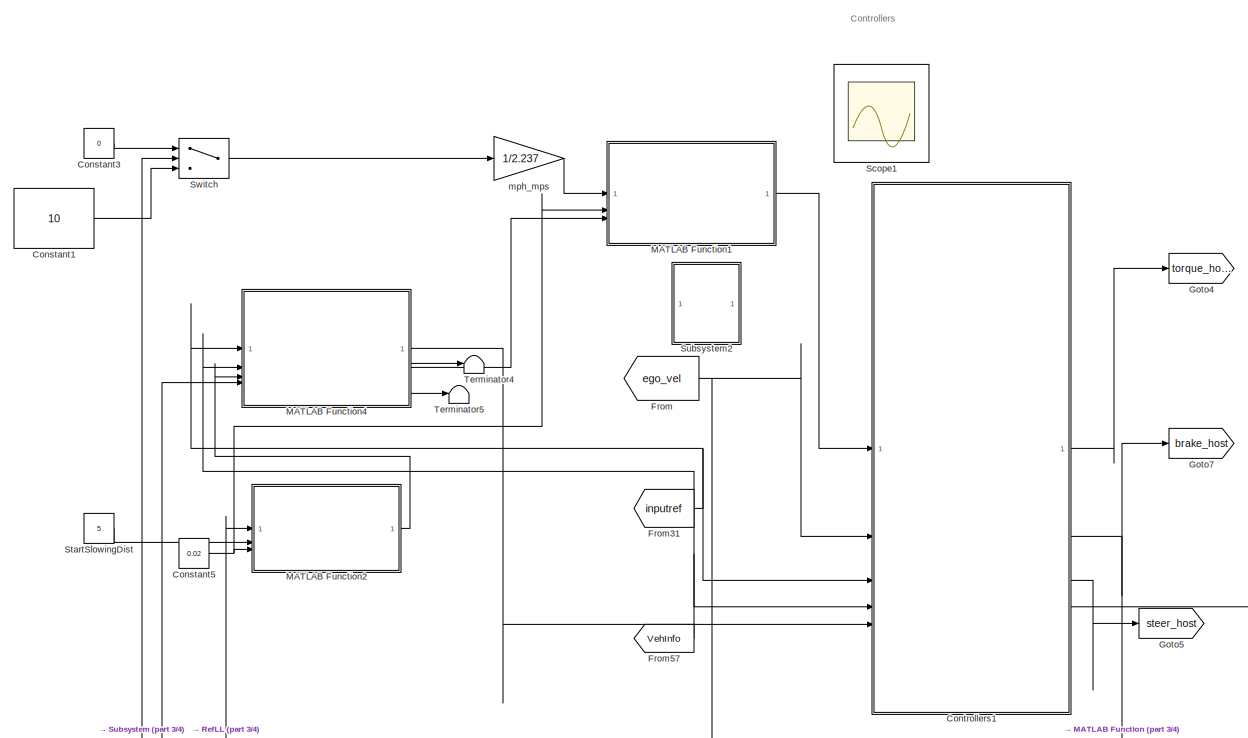
[diagram: root canvas - part 1/4, top left region]
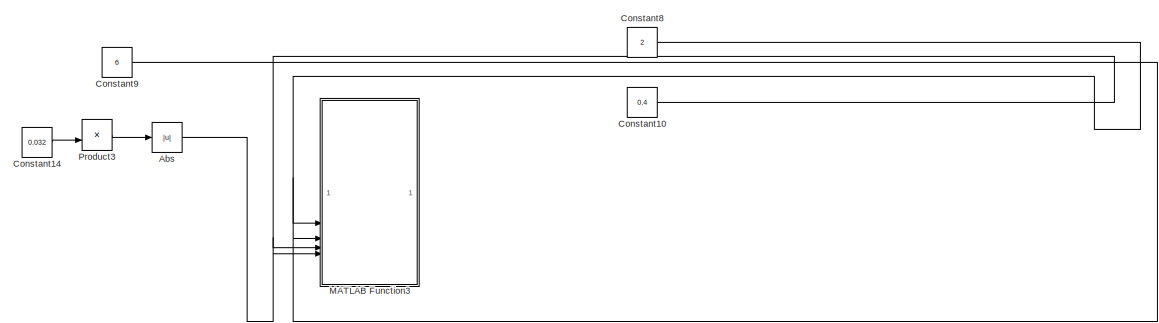
[diagram: root canvas - part 2/4, top right region]
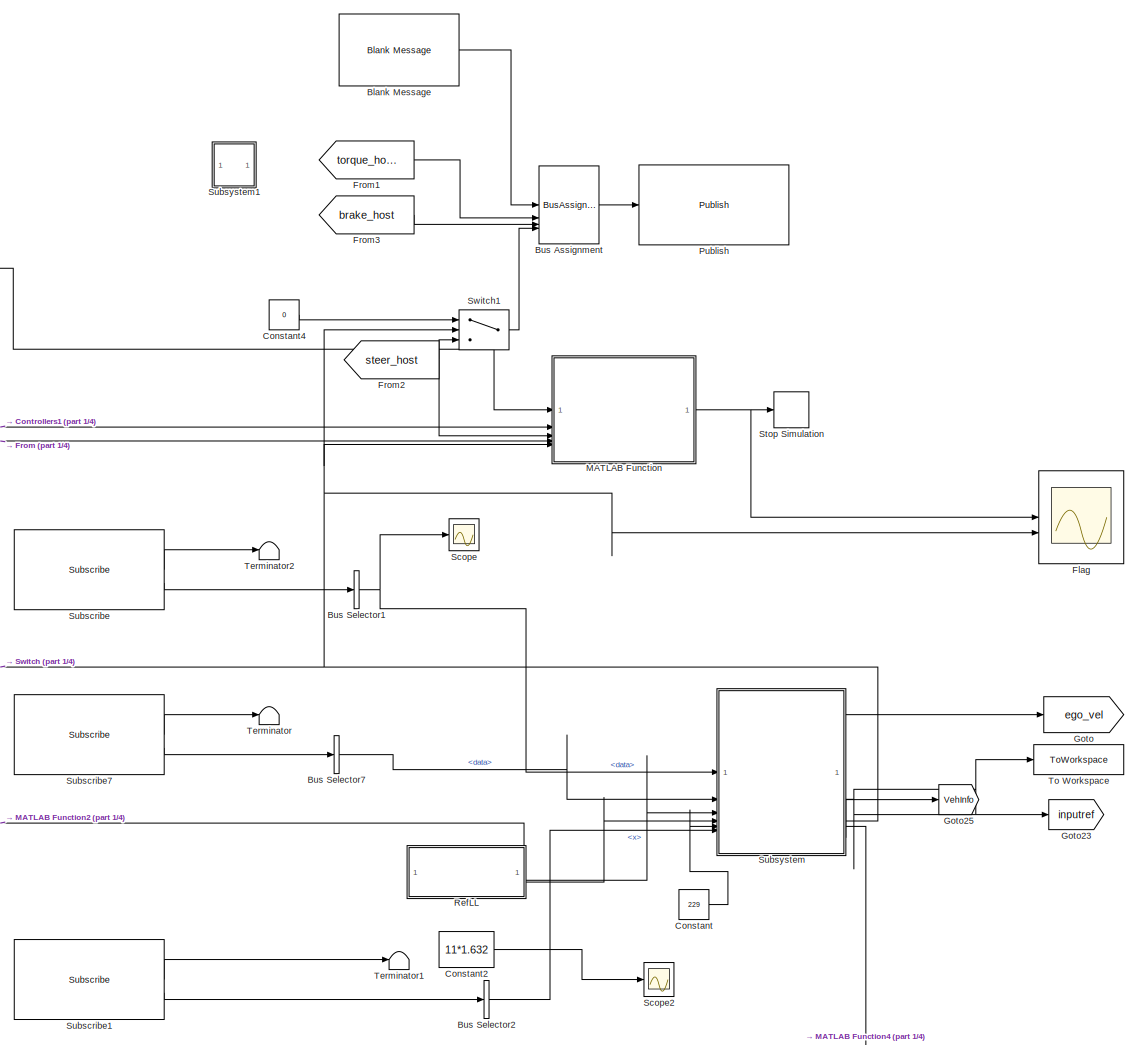
[diagram: root canvas - part 3/4, right side, full height]
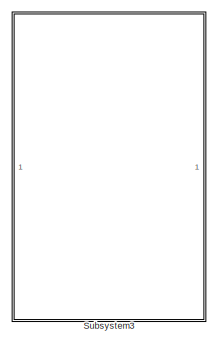
[diagram: root canvas - part 4/4, bottom right region]
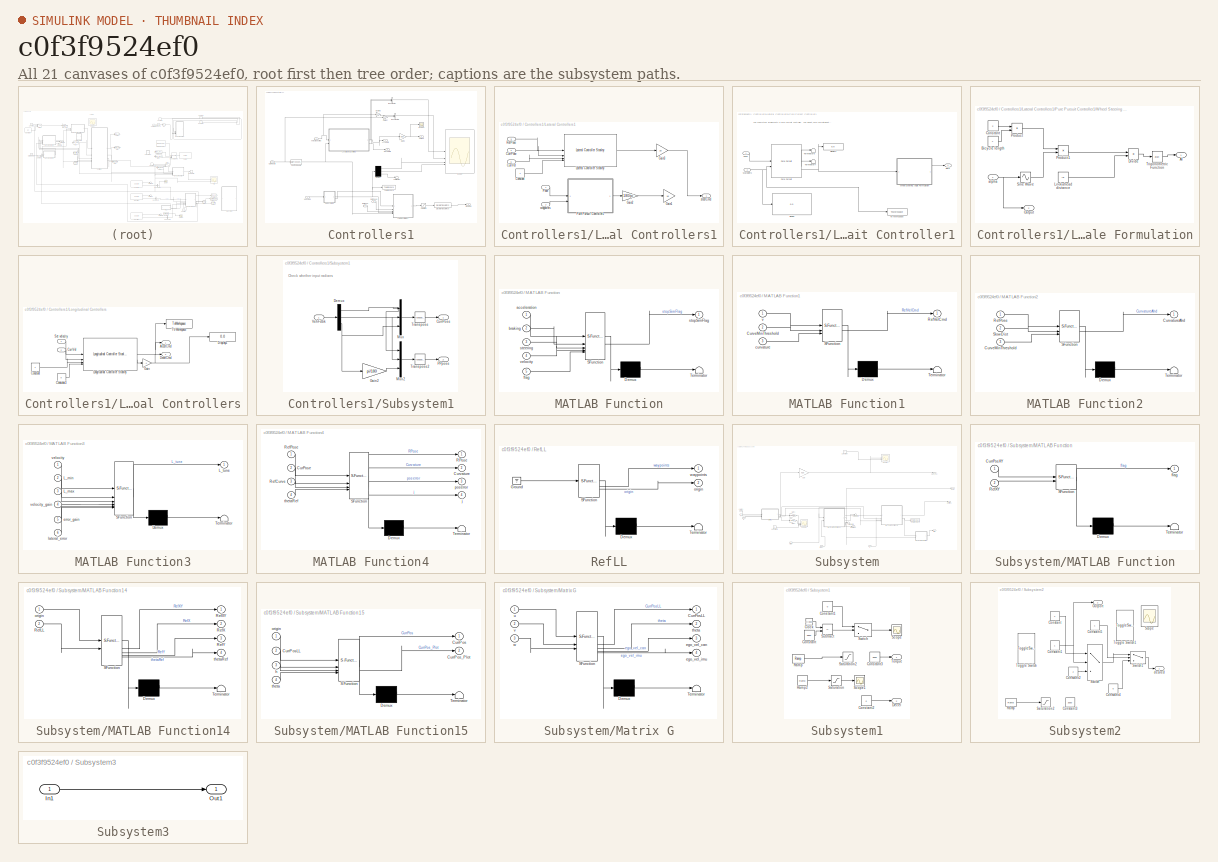
[diagram: thumbnail index - all 21 canvases of the model, root first then tree order]
MODEL slx_c0f3f9524ef0
KIND model
CONFIG AbsTol = auto
CONFIG EnableMultiTasking = off
CONFIG FixedStep = 0.01
CONFIG MaxStep = auto
CONFIG MinStep = auto
CONFIG RelTol = 1e-3
CONFIG SampleTimeConstraint = Unconstrained
CONFIG SolverName = FixedStepAuto
CONFIG StartTime = 0.0
CONFIG StopTime = inf
BLOCK [Abs] Abs
  Commented = on
  SaturateOnIntegerOverflow = off
BLOCK [Reference] Blank Message  REF=ros2lib/Blank Message  (lib defined in slx_3c1549211f48)
  LibrarySourceBlock = roslib/ROS 2/Blank Message
  SourceBlock = ros2lib/Blank Message
  SourceType = ROS2 Blank Message
BLOCK [BusAssignment] Bus Assignment
  AssignedSignals = x,y,z
BLOCK [BusSelector] Bus Selector1
  OutputSignals = data
BLOCK [BusSelector] Bus Selector2
  OutputSignals = x,y
BLOCK [BusSelector] Bus Selector7
  OutputSignals = data
BLOCK [Constant] Constant
  Value = 229
BLOCK [Constant] Constant1
  Value = 10
BLOCK [Constant] Constant10
  Commented = on
  Value = 0.4
BLOCK [Constant] Constant14
  Commented = on
  Value = 0.032
BLOCK [Constant] Constant2
  Commented = on
  Value = 11*1.632
BLOCK [Constant] Constant3
  Value = 0
BLOCK [Constant] Constant4
  Value = 0
BLOCK [Constant] Constant5
  Value = 0.02
BLOCK [Constant] Constant8
  Commented = on
  Value = 2
BLOCK [Constant] Constant9
  Commented = on
  Value = 6
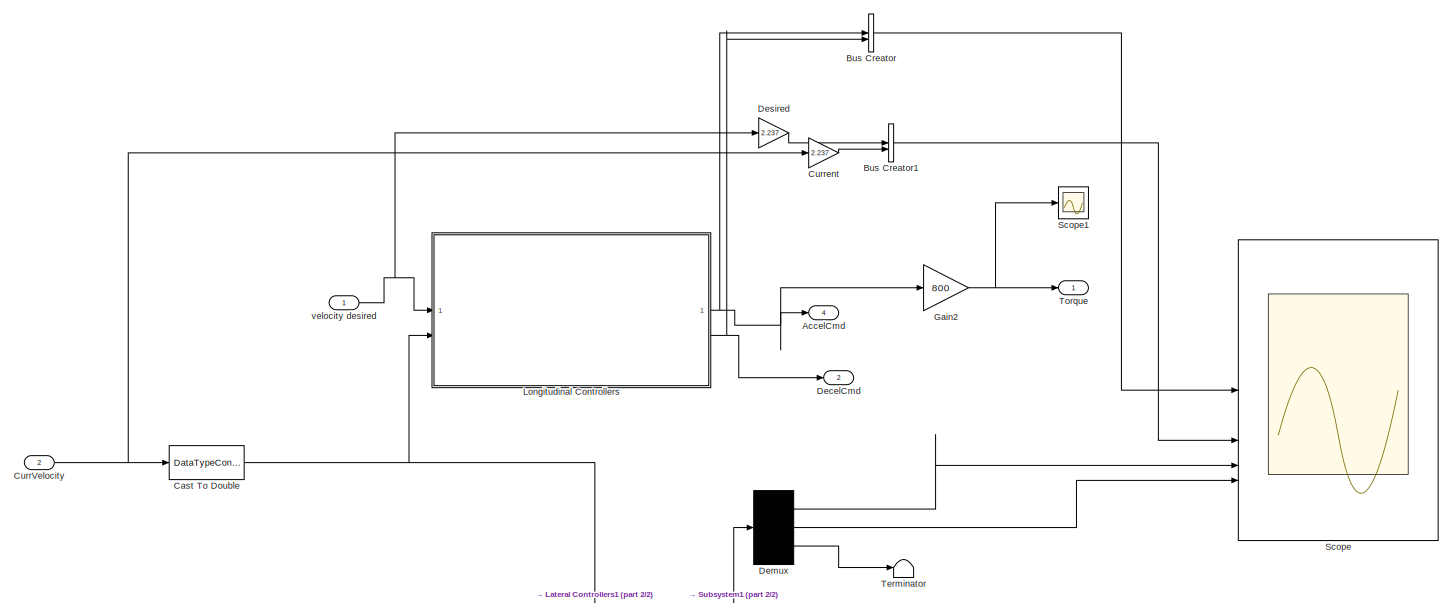
[diagram: Controllers1 - part 1/2, full width, middle band]
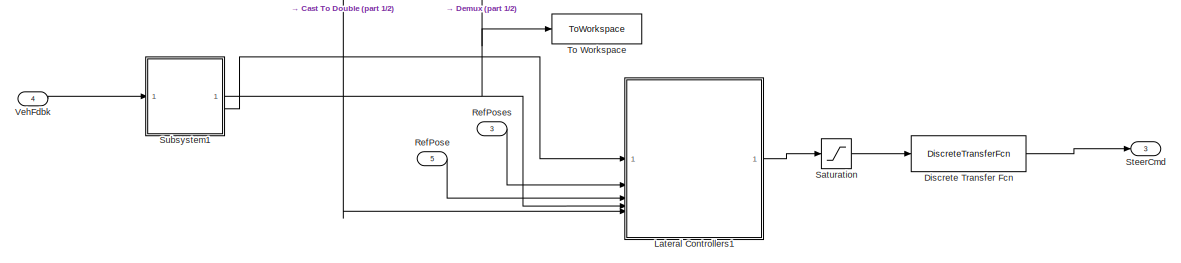
[diagram: Controllers1 - part 2/2, full width, bottom band]
BLOCK [SubSystem] Controllers1
BLOCK [Outport] Controllers1/AccelCmd
  Port = 4
BLOCK [BusCreator] Controllers1/Bus Creator
  DisplayOption = bar
  InheritFromInputs = on
  Inputs = 2
BLOCK [BusCreator] Controllers1/Bus Creator1
  DisplayOption = bar
  InheritFromInputs = on
  Inputs = 2
BLOCK [DataTypeConversion] Controllers1/Cast To Double
  OutDataTypeStr = double
  RndMeth = Floor
  SaturateOnIntegerOverflow = off
BLOCK [Inport] Controllers1/CurrVelocity
  Port = 2
BLOCK [Gain] Controllers1/Current
  Gain = 2.237
BLOCK [Outport] Controllers1/DecelCmd
  Port = 2
BLOCK [Demux] Controllers1/Demux
  Outputs = 3
BLOCK [Gain] Controllers1/Desired
  Gain = 2.237
BLOCK [DiscreteTransferFcn] Controllers1/Discrete Transfer Fcn
  Denominator = [1 -1.8952 0.90129]
  InputPortMap = u0
  Numerator = [0.0015186 0.0030372 0.0015186]
  SampleTime = 0.01
BLOCK [Gain] Controllers1/Gain2
  Gain = 800
BLOCK [SubSystem] Controllers1/Lateral Controllers1
BLOCK [Constant] Controllers1/Lateral Controllers1/Constant
BLOCK [Inport] Controllers1/Lateral Controllers1/CurrPose
  Port = 4
BLOCK [Inport] Controllers1/Lateral Controllers1/CurrVel
  Port = 5
BLOCK [Gain] Controllers1/Lateral Controllers1/Gain1
  Commented = on
  Gain = 16
BLOCK [Gain] Controllers1/Lateral Controllers1/Gain2
  Commented = on
  Gain = 180/pi
BLOCK [Gain] Controllers1/Lateral Controllers1/Gain3
  Gain = 16
BLOCK [Reference] Controllers1/Lateral Controllers1/Lateral Controller Stanley  REF=drivingvehiclecontroller/Lateral Controller Stanley
  SourceBlock = drivingvehiclecontroller/Lateral Controller Stanley
  SourceType = Lateral Controller Stanley
BLOCK [Inport] Controllers1/Lateral Controllers1/Pose
BLOCK [SubSystem] Controllers1/Lateral Controllers1/Pure Pursuit Controller1
  Commented = on
BLOCK [Display] Controllers1/Lateral Controllers1/Pure Pursuit Controller1/Display
  Decimation = 1
BLOCK [Display] Controllers1/Lateral Controllers1/Pure Pursuit Controller1/Display1
  Decimation = 1
BLOCK [Inport] Controllers1/Lateral Controllers1/Pure Pursuit Controller1/Pose
BLOCK [Reference] Controllers1/Lateral Controllers1/Pure Pursuit Controller1/Pure Pursuit  REF=robotalgslib/Pure Pursuit
  SourceBlock = robotalgslib/Pure Pursuit
  SourceType = nav.slalgs.internal.PurePursuit
BLOCK [Terminator] Controllers1/Lateral Controllers1/Pure Pursuit Controller1/Terminator6
BLOCK [Terminator] Controllers1/Lateral Controllers1/Pure Pursuit Controller1/Terminator7
BLOCK [ToWorkspace] Controllers1/Lateral Controllers1/Pure Pursuit Controller1/To Workspace
  FixptAsFi = on
  MaxDataPoints = inf
  SampleTime = -1
  SaveFormat = Timeseries
  VariableName = simout
BLOCK [Inport] Controllers1/Lateral Controllers1/Pure Pursuit Controller1/Waypoints
  Port = 2
BLOCK [SubSystem] Controllers1/Lateral Controllers1/Pure Pursuit Controller1/Wheel Steering Angle Formulation
BLOCK [Outport] Controllers1/Lateral Controllers1/Pure Pursuit Controller1/Wheel Steering Angle Formulation/Al
BLOCK [Constant] Controllers1/Lateral Controllers1/Pure Pursuit Controller1/Wheel Steering Angle Formulation/Bicycle length
  Value = L
BLOCK [Constant] Controllers1/Lateral Controllers1/Pure Pursuit Controller1/Wheel Steering Angle Formulation/Constant
  Value = 2
BLOCK [Product] Controllers1/Lateral Controllers1/Pure Pursuit Controller1/Wheel Steering Angle Formulation/Divide
  Inputs = */
BLOCK [Constant] Controllers1/Lateral Controllers1/Pure Pursuit Controller1/Wheel Steering Angle Formulation/Lookahead distance
  Value = ld
BLOCK [Outport] Controllers1/Lateral Controllers1/Pure Pursuit Controller1/Wheel Steering Angle Formulation/Output
  Port = 2
BLOCK [Product] Controllers1/Lateral Controllers1/Pure Pursuit Controller1/Wheel Steering Angle Formulation/Product
BLOCK [Product] Controllers1/Lateral Controllers1/Pure Pursuit Controller1/Wheel Steering Angle Formulation/Product1
BLOCK [Sin] Controllers1/Lateral Controllers1/Pure Pursuit Controller1/Wheel Steering Angle Formulation/Sine Wave
  SampleTime = 0
  TimeSource = Use external signal
BLOCK [Trigonometry] Controllers1/Lateral Controllers1/Pure Pursuit Controller1/Wheel Steering Angle Formulation/Trigonometric Function
  Operator = atan
BLOCK [Inport] Controllers1/Lateral Controllers1/Pure Pursuit Controller1/Wheel Steering Angle Formulation/alpha
  NameLocation = top
BLOCK [Outport] Controllers1/Lateral Controllers1/Pure Pursuit Controller1/delta
BLOCK [Inport] Controllers1/Lateral Controllers1/RefPose
  Port = 3
BLOCK [Outport] Controllers1/Lateral Controllers1/steerCmd
BLOCK [Inport] Controllers1/Lateral Controllers1/waypoints
  Port = 2
BLOCK [SubSystem] Controllers1/Longitudinal Controllers
BLOCK [Outport] Controllers1/Longitudinal Controllers/AccelCmd
BLOCK [Constant] Controllers1/Longitudinal Controllers/Constant
BLOCK [Constant] Controllers1/Longitudinal Controllers/Constant3
  Value = 0
BLOCK [Inport] Controllers1/Longitudinal Controllers/CurrVel
  Port = 2
BLOCK [Outport] Controllers1/Longitudinal Controllers/DecelCmd
  Port = 2
BLOCK [Display] Controllers1/Longitudinal Controllers/Display1
  Decimation = 1
BLOCK [Gain] Controllers1/Longitudinal Controllers/Gain
  Gain = -1
BLOCK [Reference] Controllers1/Longitudinal Controllers/Longitudinal Controller Stanley  REF=drivingvehiclecontroller/Longitudinal Controller Stanley
  SourceBlock = drivingvehiclecontroller/Longitudinal Controller Stanley
  SourceType = Longitudinal Controller Stanley
BLOCK [Inport] Controllers1/Longitudinal Controllers/Set velocity
BLOCK [ToWorkspace] Controllers1/Longitudinal Controllers/To Workspace
  FixptAsFi = on
  MaxDataPoints = inf
  SampleTime = -1
  SaveFormat = Timeseries
  VariableName = simout4
BLOCK [Inport] Controllers1/RefPose
  Port = 5
BLOCK [Inport] Controllers1/RefPoses
  Port = 3
BLOCK [Saturate] Controllers1/Saturation
  LinearizeAsGain = off
  LowerLimit = -540
  UpperLimit = 540
BLOCK [Scope] Controllers1/Scope
  Floating = off
  NumInputPorts = 4
  ScopeSpecificationString = Simulink.scopes.TimeScopeBlockCfg('CurrentConfiguration', extmgr.ConfigurationSet(extmgr.Configuration('Core','General UI',true),extmgr.Configuration('Core','Source UI',true),extmgr.Configuration('Sources','WiredSimulink',true,'DataLoggingVariableName','ScopeData3'),extmgr.Configuration('Visuals','Time Domain',true,'SerializedDisplays',{struct('MinYLimReal','-2.77151','MaxYLimReal','3.41906','YLab...<+3876ch>
BLOCK [Scope] Controllers1/Scope1
  Floating = off
  NumInputPorts = 1
  ScopeSpecificationString = Simulink.scopes.TimeScopeBlockCfg('CurrentConfiguration', extmgr.ConfigurationSet(extmgr.Configuration('Core','General UI',true),extmgr.Configuration('Core','Source UI',true),extmgr.Configuration('Sources','WiredSimulink',true,'DataLoggingVariableName','ScopeData4'),extmgr.Configuration('Visuals','Time Domain',true,'SerializedDisplays',{struct('MinYLimReal','1800.00000','MaxYLimReal','3800.00000',...<+1437ch>
BLOCK [Outport] Controllers1/SteerCmd
  Port = 3
BLOCK [SubSystem] Controllers1/Subsystem1
  NameLocation = top
BLOCK [Outport] Controllers1/Subsystem1/CurrPose
BLOCK [Demux] Controllers1/Subsystem1/Demux
  Outputs = 3
BLOCK [Gain] Controllers1/Subsystem1/Gain2
  Gain = pi/180
BLOCK [Mux] Controllers1/Subsystem1/Mux
  DisplayOption = bar
  Inputs = 3
BLOCK [Mux] Controllers1/Subsystem1/Mux2
  DisplayOption = bar
  Inputs = 3
BLOCK [Outport] Controllers1/Subsystem1/PPpose
  Port = 2
BLOCK [Math] Controllers1/Subsystem1/Transpose
  Operator = transpose
  SignedPower = on
BLOCK [Math] Controllers1/Subsystem1/Transpose2
  Operator = transpose
  SignedPower = on
BLOCK [Inport] Controllers1/Subsystem1/VehFdbk
BLOCK [Terminator] Controllers1/Terminator
BLOCK [ToWorkspace] Controllers1/To Workspace
  FixptAsFi = on
  MaxDataPoints = inf
  SampleTime = -1
  SaveFormat = Structure With Time
  VariableName = current
BLOCK [Outport] Controllers1/Torque
BLOCK [Inport] Controllers1/VehFdbk
  Port = 4
BLOCK [Inport] Controllers1/velocity desired
BLOCK [Scope] Flag 
  Floating = off
  NumInputPorts = 2
  ScopeSpecificationString = Simulink.scopes.TimeScopeBlockCfg('CurrentConfiguration', extmgr.ConfigurationSet(extmgr.Configuration('Core','General UI',true),extmgr.Configuration('Core','Source UI',true),extmgr.Configuration('Sources','WiredSimulink',true,'DataLoggingVariableName','ScopeData1'),extmgr.Configuration('Visuals','Time Domain',true,'SerializedDisplays',{struct('MinYLimReal','-11.36311','MaxYLimReal','102.268','YLa...<+2969ch>
BLOCK [From] From
  GotoTag = ego_vel
  TagVisibility = global
BLOCK [From] From1
  GotoTag = torque_host
  TagVisibility = global
BLOCK [From] From2
  GotoTag = steer_host
  TagVisibility = global
BLOCK [From] From3
  GotoTag = brake_host
  TagVisibility = global
BLOCK [From] From31
  GotoTag = inputref
  TagVisibility = global
BLOCK [From] From57
  GotoTag = VehInfo
  TagVisibility = global
BLOCK [Goto] Goto
  GotoTag = ego_vel
  TagVisibility = global
BLOCK [Goto] Goto23
  GotoTag = inputref
  TagVisibility = global
BLOCK [Goto] Goto25
  GotoTag = VehInfo
  TagVisibility = global
BLOCK [Goto] Goto4
  GotoTag = torque_host
  TagVisibility = global
BLOCK [Goto] Goto5
  GotoTag = steer_host
  TagVisibility = global
BLOCK [Goto] Goto7
  GotoTag = brake_host
  TagVisibility = global
BLOCK [SubSystem] MATLAB Function
  ErrorFcn = Stateflow.Translate.translate
  LibrarySourceBlock = simulink/User-Defined\nFunctions/MATLAB Function
  PermitHierarchicalResolution = ExplicitOnly
  SFBlockType = MATLAB Function
  TreatAsAtomicUnit = on
BLOCK [Demux] MATLAB Function/ Demux 
  Outputs = 1
BLOCK [S-Function] MATLAB Function/ SFunction 
  EnableBusSupport = on
  FunctionName = sf_sfun
  PortCounts = [5 2]
  SFcnIsStateOwnerBlock = off
  SFunctionDeploymentMode = off
  Tag = Stateflow S-Function 4
BLOCK [Terminator] MATLAB Function/ Terminator 
BLOCK [Inport] MATLAB Function/acceleration
BLOCK [Inport] MATLAB Function/braking
  Port = 2
BLOCK [Inport] MATLAB Function/flag
  Port = 5
BLOCK [Inport] MATLAB Function/steering
  Port = 3
BLOCK [Outport] MATLAB Function/stopSimFlag
BLOCK [Inport] MATLAB Function/velocity
  Port = 4
BLOCK [SubSystem] MATLAB Function1
  ErrorFcn = Stateflow.Translate.translate
  LibrarySourceBlock = simulink/User-Defined\nFunctions/MATLAB Function
  PermitHierarchicalResolution = ExplicitOnly
  SFBlockType = MATLAB Function
  TreatAsAtomicUnit = on
BLOCK [Demux] MATLAB Function1/ Demux 
  Outputs = 1
BLOCK [S-Function] MATLAB Function1/ SFunction 
  EnableBusSupport = on
  FunctionName = sf_sfun
  PortCounts = [3 2]
  SFcnIsStateOwnerBlock = off
  SFunctionDeploymentMode = off
  Tag = Stateflow S-Function 5
BLOCK [Terminator] MATLAB Function1/ Terminator 
BLOCK [Inport] MATLAB Function1/CurveMinThreshold
  Port = 2
BLOCK [Outport] MATLAB Function1/RefVelCmd
BLOCK [Inport] MATLAB Function1/curvature
  Port = 3
BLOCK [Inport] MATLAB Function1/v
BLOCK [SubSystem] MATLAB Function2
  ErrorFcn = Stateflow.Translate.translate
  LibrarySourceBlock = simulink/User-Defined\nFunctions/MATLAB Function
  PermitHierarchicalResolution = ExplicitOnly
  SFBlockType = MATLAB Function
  TreatAsAtomicUnit = on
BLOCK [Demux] MATLAB Function2/ Demux 
  Outputs = 1
BLOCK [S-Function] MATLAB Function2/ SFunction 
  EnableBusSupport = on
  FunctionName = sf_sfun
  PortCounts = [3 2]
  SFcnIsStateOwnerBlock = off
  SFunctionDeploymentMode = off
  Tag = Stateflow S-Function 6
BLOCK [Terminator] MATLAB Function2/ Terminator 
BLOCK [Outport] MATLAB Function2/CurvatureAhd
BLOCK [Inport] MATLAB Function2/CurveMinThreshold
  Port = 3
BLOCK [Inport] MATLAB Function2/RefPose
BLOCK [Inport] MATLAB Function2/SlowDist
  Port = 2
BLOCK [SubSystem] MATLAB Function3
  Commented = on
  ErrorFcn = Stateflow.Translate.translate
  PermitHierarchicalResolution = ExplicitOnly
  SFBlockType = MATLAB Function
  TreatAsAtomicUnit = on
BLOCK [Demux] MATLAB Function3/ Demux 
  Outputs = 1
BLOCK [S-Function] MATLAB Function3/ SFunction 
  EnableBusSupport = on
  FunctionName = sf_sfun
  PortCounts = [6 2]
  SFcnIsStateOwnerBlock = off
  SFunctionDeploymentMode = off
  Tag = Stateflow S-Function 27
BLOCK [Terminator] MATLAB Function3/ Terminator 
BLOCK [Inport] MATLAB Function3/L_max
  Port = 3
BLOCK [Inport] MATLAB Function3/L_min
  Port = 2
BLOCK [Outport] MATLAB Function3/L_tune
BLOCK [Inport] MATLAB Function3/error_gain
  Port = 5
BLOCK [Inport] MATLAB Function3/lateral_error
  Port = 6
BLOCK [Inport] MATLAB Function3/velocity
BLOCK [Inport] MATLAB Function3/velocity_gain
  Port = 4
BLOCK [SubSystem] MATLAB Function4
  ErrorFcn = Stateflow.Translate.translate
  LibrarySourceBlock = simulink/User-Defined\nFunctions/MATLAB Function
  PermitHierarchicalResolution = ExplicitOnly
  SFBlockType = MATLAB Function
  TreatAsAtomicUnit = on
BLOCK [Demux] MATLAB Function4/ Demux 
  Outputs = 1
BLOCK [S-Function] MATLAB Function4/ SFunction 
  EnableBusSupport = on
  FunctionName = sf_sfun
  PortCounts = [4 5]
  SFcnIsStateOwnerBlock = off
  SFunctionDeploymentMode = off
  Tag = Stateflow S-Function 7
BLOCK [Terminator] MATLAB Function4/ Terminator 
BLOCK [Inport] MATLAB Function4/CurPose
  Port = 2
BLOCK [Outport] MATLAB Function4/Curvature
  Port = 2
BLOCK [Outport] MATLAB Function4/RPose
BLOCK [Inport] MATLAB Function4/RefCurve
  Port = 3
BLOCK [Inport] MATLAB Function4/RefPose
BLOCK [Outport] MATLAB Function4/j
  Port = 4
BLOCK [Outport] MATLAB Function4/poserror
  Port = 3
BLOCK [Inport] MATLAB Function4/thetaRef
  Port = 4
BLOCK [Product] Product3
  Commented = on
BLOCK [Reference] Publish  REF=ros2lib/Publish  (lib defined in slx_3c1549211f48)
  LibrarySourceBlock = roslib/ROS 2/Publish
  SourceBlock = ros2lib/Publish
  SourceType = ROS2 Publish
BLOCK [SubSystem] RefLL
  ErrorFcn = Stateflow.Translate.translate
  LibrarySourceBlock = simulink/User-Defined\nFunctions/MATLAB Function
  PermitHierarchicalResolution = ExplicitOnly
  SFBlockType = MATLAB Function
  TreatAsAtomicUnit = on
BLOCK [Demux] RefLL/ Demux 
  Outputs = 1
BLOCK [Ground] RefLL/ Ground 
BLOCK [S-Function] RefLL/ SFunction 
  EnableBusSupport = on
  FunctionName = sf_sfun
  PortCounts = [1 3]
  SFcnIsStateOwnerBlock = off
  SFunctionDeploymentMode = off
  Tag = Stateflow S-Function 1
BLOCK [Terminator] RefLL/ Terminator 
BLOCK [Outport] RefLL/origin
  Port = 2
BLOCK [Outport] RefLL/waypoints
BLOCK [Scope] Scope
  Commented = on
  Floating = off
  NumInputPorts = 1
  ScopeSpecificationString = Simulink.scopes.TimeScopeBlockCfg('CurrentConfiguration', extmgr.ConfigurationSet(extmgr.Configuration('Core','General UI',true),extmgr.Configuration('Core','Source UI',true),extmgr.Configuration('Sources','WiredSimulink',true,'DataLoggingVariableName','ScopeData1'),extmgr.Configuration('Visuals','Time Domain',true,'SerializedDisplays',{struct('MinYLimReal','-11.36311','MaxYLimReal','102.268','YLa...<+2969ch>
BLOCK [Scope] Scope1
  Commented = on
  Floating = off
  NumInputPorts = 3
  ScopeSpecificationString = Simulink.scopes.TimeScopeBlockCfg('CurrentConfiguration', extmgr.ConfigurationSet(extmgr.Configuration('Core','General UI',true),extmgr.Configuration('Core','Source UI',true),extmgr.Configuration('Sources','WiredSimulink',true,'DataLoggingVariableName','ScopeData1'),extmgr.Configuration('Visuals','Time Domain',true,'SerializedDisplays',{struct('MinYLimReal','-0.675','MaxYLimReal','6.075','YLabelRe...<+1438ch>
BLOCK [Scope] Scope2
  Commented = on
  Floating = off
  NumInputPorts = 3
  ScopeSpecificationString = Simulink.scopes.TimeScopeBlockCfg('CurrentConfiguration', extmgr.ConfigurationSet(extmgr.Configuration('Core','General UI',true),extmgr.Configuration('Core','Source UI',true),extmgr.Configuration('Sources','WiredSimulink',true,'DataLoggingVariableName','ScopeData2'),extmgr.Configuration('Visuals','Time Domain',true,'SerializedDisplays',{struct('MinYLimReal','8.48211','MaxYLimReal','23.34322','YLab...<+1454ch>
BLOCK [Constant] StartSlowingDist
  Value = 5
BLOCK [Stop] Stop Simulation
BLOCK [Reference] Subscribe  REF=ros2lib/Subscribe  (lib defined in slx_3c1549211f48)
  LibrarySourceBlock = roslib/ROS 2/Subscribe
  SourceBlock = ros2lib/Subscribe
  SourceType = ROS2 Subscribe
BLOCK [Reference] Subscribe1  REF=ros2lib/Subscribe  (lib defined in slx_3c1549211f48)
  LibrarySourceBlock = roslib/ROS 2/Subscribe
  SourceBlock = ros2lib/Subscribe
  SourceType = ROS2 Subscribe
BLOCK [Reference] Subscribe7  REF=ros2lib/Subscribe  (lib defined in slx_3c1549211f48)
  LibrarySourceBlock = roslib/ROS 2/Subscribe
  SourceBlock = ros2lib/Subscribe
  SourceType = ROS2 Subscribe
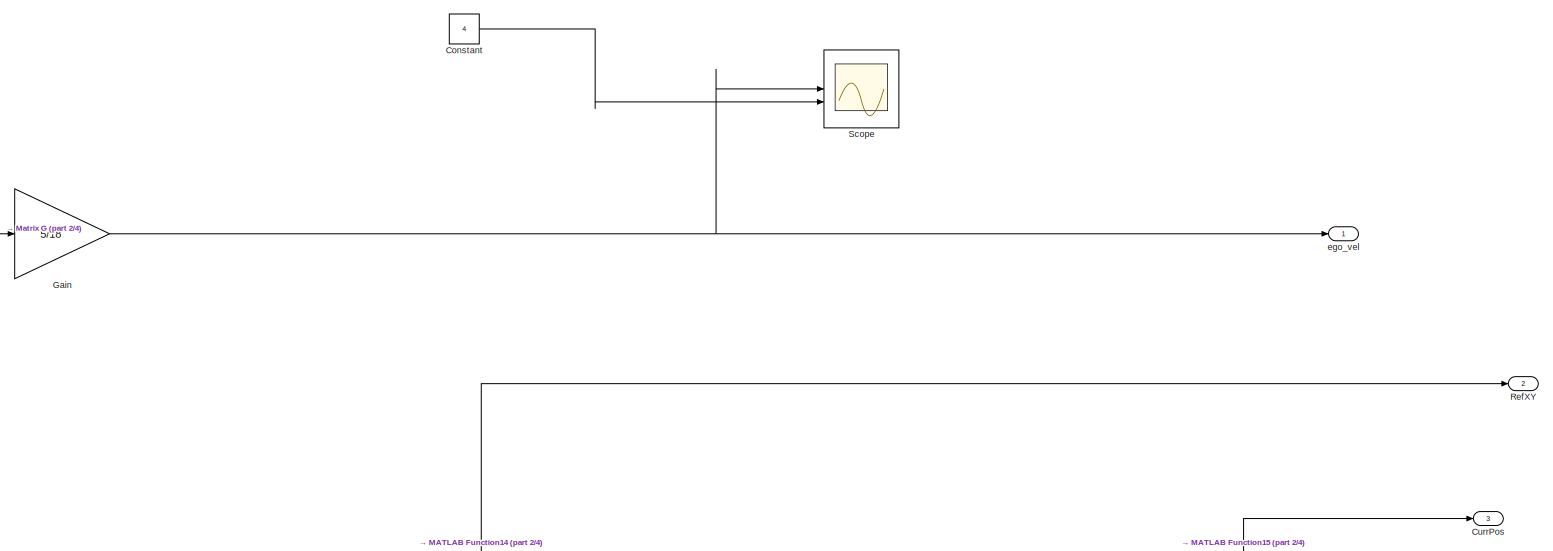
[diagram: Subsystem - part 1/4, top center region]
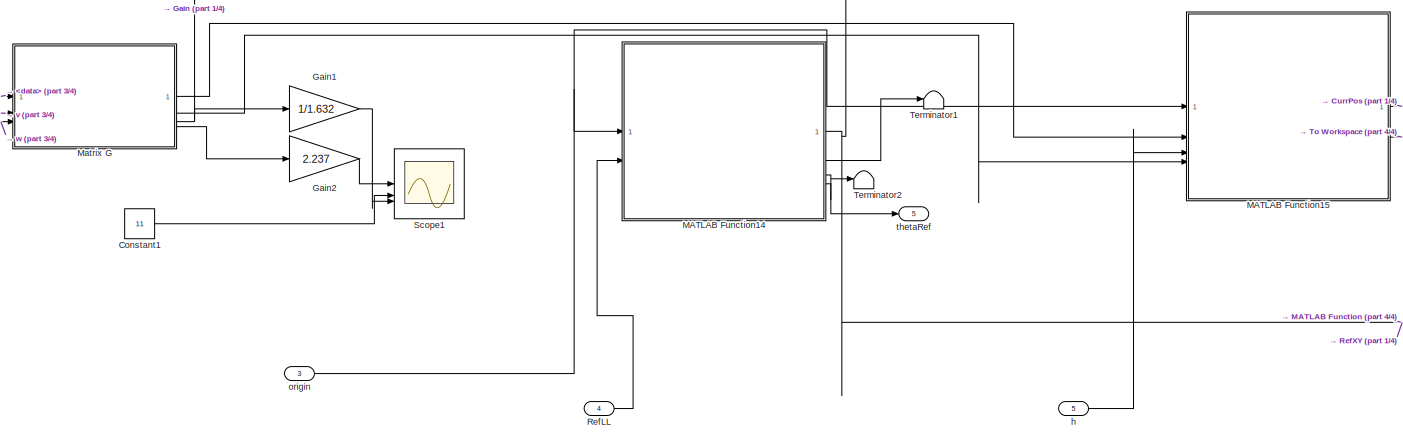
[diagram: Subsystem - part 2/4, bottom center region]
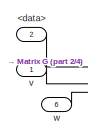
[diagram: Subsystem - part 3/4, middle left region]
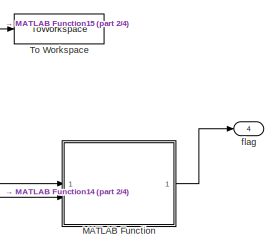
[diagram: Subsystem - part 4/4, bottom right region]
BLOCK [SubSystem] Subsystem
BLOCK [Inport] Subsystem/<data>
  Port = 2
BLOCK [Constant] Subsystem/Constant
  Value = 4
BLOCK [Constant] Subsystem/Constant1
  Value = 11
BLOCK [Outport] Subsystem/CurrPos
  Port = 3
BLOCK [Gain] Subsystem/Gain
  Gain = 5/18
BLOCK [Gain] Subsystem/Gain1
  Gain = 1/1.632
BLOCK [Gain] Subsystem/Gain2
  Gain = 2.237
BLOCK [SubSystem] Subsystem/MATLAB Function
  ErrorFcn = Stateflow.Translate.translate
  LibrarySourceBlock = simulink/User-Defined\nFunctions/MATLAB Function
  PermitHierarchicalResolution = ExplicitOnly
  SFBlockType = MATLAB Function
  TreatAsAtomicUnit = on
BLOCK [Demux] Subsystem/MATLAB Function/ Demux 
  Outputs = 1
BLOCK [S-Function] Subsystem/MATLAB Function/ SFunction 
  EnableBusSupport = on
  FunctionName = sf_sfun
  PortCounts = [2 2]
  SFcnIsStateOwnerBlock = off
  SFunctionDeploymentMode = off
  Tag = Stateflow S-Function 3
BLOCK [Terminator] Subsystem/MATLAB Function/ Terminator 
BLOCK [Inport] Subsystem/MATLAB Function/CurrPosXY
BLOCK [Inport] Subsystem/MATLAB Function/RefXY
  Port = 2
BLOCK [Outport] Subsystem/MATLAB Function/flag
BLOCK [SubSystem] Subsystem/MATLAB Function14
  ErrorFcn = Stateflow.Translate.translate
  LibrarySourceBlock = simulink/User-Defined\nFunctions/MATLAB Function
  PermitHierarchicalResolution = ExplicitOnly
  SFBlockType = MATLAB Function
  TreatAsAtomicUnit = on
BLOCK [Demux] Subsystem/MATLAB Function14/ Demux 
  Outputs = 1
BLOCK [S-Function] Subsystem/MATLAB Function14/ SFunction 
  EnableBusSupport = on
  FunctionName = sf_sfun
  PortCounts = [2 5]
  SFcnIsStateOwnerBlock = off
  SFunctionDeploymentMode = off
  Tag = Stateflow S-Function 36
BLOCK [Terminator] Subsystem/MATLAB Function14/ Terminator 
BLOCK [Inport] Subsystem/MATLAB Function14/RefLL
  Port = 2
BLOCK [Outport] Subsystem/MATLAB Function14/RefX
  Port = 2
BLOCK [Outport] Subsystem/MATLAB Function14/RefXY
BLOCK [Outport] Subsystem/MATLAB Function14/RefY
  Port = 3
BLOCK [Inport] Subsystem/MATLAB Function14/origin
BLOCK [Outport] Subsystem/MATLAB Function14/thetaRef
  Port = 4
BLOCK [SubSystem] Subsystem/MATLAB Function15
  ErrorFcn = Stateflow.Translate.translate
  LibrarySourceBlock = simulink/User-Defined\nFunctions/MATLAB Function
  PermitHierarchicalResolution = ExplicitOnly
  SFBlockType = MATLAB Function
  TreatAsAtomicUnit = on
BLOCK [Demux] Subsystem/MATLAB Function15/ Demux 
  Outputs = 1
BLOCK [S-Function] Subsystem/MATLAB Function15/ SFunction 
  EnableBusSupport = on
  FunctionName = sf_sfun
  PortCounts = [4 3]
  SFcnIsStateOwnerBlock = off
  SFunctionDeploymentMode = off
  Tag = Stateflow S-Function 37
BLOCK [Terminator] Subsystem/MATLAB Function15/ Terminator 
BLOCK [Outport] Subsystem/MATLAB Function15/CurrPos
BLOCK [Inport] Subsystem/MATLAB Function15/CurrPosLL
  Port = 2
BLOCK [Outport] Subsystem/MATLAB Function15/CurrPos_Plot
  Port = 2
BLOCK [Inport] Subsystem/MATLAB Function15/h
  Port = 3
BLOCK [Inport] Subsystem/MATLAB Function15/origin
BLOCK [Inport] Subsystem/MATLAB Function15/theta
  Port = 4
BLOCK [SubSystem] Subsystem/Matrix G
  ErrorFcn = Stateflow.Translate.translate
  LibrarySourceBlock = simulink/User-Defined\nFunctions/MATLAB Function
  PermitHierarchicalResolution = ExplicitOnly
  SFBlockType = MATLAB Function
  TreatAsAtomicUnit = on
BLOCK [Demux] Subsystem/Matrix G/ Demux 
  Outputs = 1
BLOCK [S-Function] Subsystem/Matrix G/ SFunction 
  EnableBusSupport = on
  FunctionName = sf_sfun
  PortCounts = [3 5]
  SFcnIsStateOwnerBlock = off
  SFunctionDeploymentMode = off
  Tag = Stateflow S-Function 13
BLOCK [Terminator] Subsystem/Matrix G/ Terminator 
BLOCK [Outport] Subsystem/Matrix G/CurrPosLL
BLOCK [Outport] Subsystem/Matrix G/ego_vel_can
  Port = 3
BLOCK [Outport] Subsystem/Matrix G/ego_vel_imu
  Port = 4
BLOCK [Outport] Subsystem/Matrix G/theta
  Port = 2
BLOCK [Inport] Subsystem/Matrix G/u
BLOCK [Inport] Subsystem/Matrix G/v
  Port = 2
BLOCK [Inport] Subsystem/Matrix G/w
  Port = 3
BLOCK [Inport] Subsystem/RefLL
  Port = 4
BLOCK [Outport] Subsystem/RefXY
  Port = 2
BLOCK [Scope] Subsystem/Scope
  Floating = off
  NumInputPorts = 2
  ScopeSpecificationString = Simulink.scopes.TimeScopeBlockCfg('CurrentConfiguration', extmgr.ConfigurationSet(extmgr.Configuration('Core','General UI',true),extmgr.Configuration('Core','Source UI',true),extmgr.Configuration('Sources','WiredSimulink',true,'DataLoggingVariableName','ScopeData2'),extmgr.Configuration('Visuals','Time Domain',true,'SerializedDisplays',{struct('MinYLimReal','-0.54414','MaxYLimReal','4.8973','YLabe...<+1434ch>
BLOCK [Scope] Subsystem/Scope1
  Floating = off
  NumInputPorts = 3
  ScopeSpecificationString = Simulink.scopes.TimeScopeBlockCfg('CurrentConfiguration', extmgr.ConfigurationSet(extmgr.Configuration('Core','General UI',true),extmgr.Configuration('Core','Source UI',true),extmgr.Configuration('Sources','WiredSimulink',true,'DataLoggingVariableName','ScopeData1'),extmgr.Configuration('Visuals','Time Domain',true,'SerializedDisplays',{struct('MinYLimReal','-1.67888','MaxYLimReal','15.1099','YLab...<+1452ch>
BLOCK [Terminator] Subsystem/Terminator1
BLOCK [Terminator] Subsystem/Terminator2
BLOCK [ToWorkspace] Subsystem/To Workspace
  FixptAsFi = on
  MaxDataPoints = inf
  SampleTime = -1
  VariableName = curr_xy
BLOCK [Outport] Subsystem/ego_vel
BLOCK [Outport] Subsystem/flag
  Port = 4
BLOCK [Inport] Subsystem/h
  Port = 5
BLOCK [Inport] Subsystem/origin
  Port = 3
BLOCK [Outport] Subsystem/thetaRef
  Port = 5
BLOCK [Inport] Subsystem/v
BLOCK [Inport] Subsystem/w
  Port = 6
BLOCK [SubSystem] Subsystem1
  Commented = on
BLOCK [Clock] Subsystem1/Clock
  Commented = on
BLOCK [Constant] Subsystem1/Constant
  Commented = on
  SampleTime = 0.1
  Value = 2500
BLOCK [Constant] Subsystem1/Constant1
  Commented = on
  SampleTime = 0.1
  Value = 0
BLOCK [Constant] Subsystem1/Constant2
  SampleTime = 0.01
  Value = 0
BLOCK [Constant] Subsystem1/Constant3
  Value = 3000
BLOCK [Outport] Subsystem1/Decel
  Port = 2
BLOCK [Reference] Subsystem1/Ramp  REF=simulink/Sources/Ramp
  SourceBlock = simulink/Sources/Ramp
  SourceType = Ramp
BLOCK [Reference] Subsystem1/Ramp2  REF=simulink/Sources/Ramp
  SourceBlock = simulink/Sources/Ramp
  SourceType = Ramp
BLOCK [Saturate] Subsystem1/Saturation
  LowerLimit = -5
  UpperLimit = 0
BLOCK [Saturate] Subsystem1/Saturation2
  LowerLimit = 0
  UpperLimit = 1950
BLOCK [Scope] Subsystem1/Scope
  Commented = on
  Floating = off
  NumInputPorts = 1
  ScopeSpecificationString = Simulink.scopes.TimeScopeBlockCfg('CurrentConfiguration', extmgr.ConfigurationSet(extmgr.Configuration('Core','General UI',true),extmgr.Configuration('Core','Source UI',true),extmgr.Configuration('Sources','WiredSimulink',true,'DataLoggingVariableName','ScopeData1'),extmgr.Configuration('Visuals','Time Domain',true,'SerializedDisplays',{struct('MinYLimReal','1587.5','MaxYLimReal','1712.5','YLabelR...<+1406ch>
BLOCK [Scope] Subsystem1/Scope1
  Floating = off
  NumInputPorts = 1
  ScopeSpecificationString = Simulink.scopes.TimeScopeBlockCfg('CurrentConfiguration', extmgr.ConfigurationSet(extmgr.Configuration('Core','General UI',true),extmgr.Configuration('Core','Source UI',true),extmgr.Configuration('Sources','WiredSimulink',true,'DataLoggingVariableName','ScopeData2'),extmgr.Configuration('Visuals','Time Domain',true,'SerializedDisplays',{struct('MinYLimReal','-1.00000','MaxYLimReal','1.00000','YLab...<+1423ch>
BLOCK [Sum] Subsystem1/Subtract
  Commented = on
  IconShape = rectangular
  Inputs = +-
BLOCK [Switch] Subsystem1/Switch
  Commented = on
  InputSameDT = off
  SaturateOnIntegerOverflow = off
BLOCK [Outport] Subsystem1/Torque
BLOCK [SubSystem] Subsystem2
  Commented = on
BLOCK [Constant] Subsystem2/Constant
  Value = 4
BLOCK [Constant] Subsystem2/Constant1
  SampleTime = 0.01
BLOCK [Constant] Subsystem2/Constant2
  Value = 2
BLOCK [Constant] Subsystem2/Constant3
  Commented = on
  Value = 3000
BLOCK [Constant] Subsystem2/Constant4
  Value = 6
BLOCK [Constant] Subsystem2/Constant5
  SampleTime = 0.01
BLOCK [Outport] Subsystem2/Outport
  Port = 2
BLOCK [Reference] Subsystem2/Ramp  REF=simulink/Sources/Ramp
  Commented = on
  SourceBlock = simulink/Sources/Ramp
  SourceType = Ramp
BLOCK [Saturate] Subsystem2/Saturation2
  Commented = on
  LowerLimit = 0
  UpperLimit = 1950
BLOCK [Scope] Subsystem2/Scope
  Floating = off
  NumInputPorts = 1
  ScopeSpecificationString = Simulink.scopes.TimeScopeBlockCfg('CurrentConfiguration', extmgr.ConfigurationSet(extmgr.Configuration('Core','General UI',true),extmgr.Configuration('Core','Source UI',true),extmgr.Configuration('Sources','WiredSimulink',true,'DataLoggingVariableName','ScopeData1'),extmgr.Configuration('Visuals','Time Domain',true,'SerializedDisplays',{struct('MinYLimReal','1587.5','MaxYLimReal','1712.5','YLabelR...<+1406ch>
BLOCK [Switch] Subsystem2/Switch
  Criteria = u2 > Threshold
  InputSameDT = off
  SaturateOnIntegerOverflow = off
BLOCK [Switch] Subsystem2/Switch1
  Criteria = u2 > Threshold
  InputSameDT = off
  SaturateOnIntegerOverflow = off
BLOCK [ToggleSwitchBlock] Subsystem2/Toggle Switch
BLOCK [ToggleSwitchBlock] Subsystem2/Toggle Switch1
BLOCK [Outport] Subsystem2/desired
BLOCK [SubSystem] Subsystem3
  Commented = on
BLOCK [Inport] Subsystem3/In1
BLOCK [Outport] Subsystem3/Out1
BLOCK [Switch] Switch
  Criteria = u2 > Threshold
  InputSameDT = off
  SaturateOnIntegerOverflow = off
BLOCK [Switch] Switch1
  Criteria = u2 > Threshold
  InputSameDT = off
  SaturateOnIntegerOverflow = off
BLOCK [Terminator] Terminator
BLOCK [Terminator] Terminator1
BLOCK [Terminator] Terminator2
BLOCK [Terminator] Terminator4
BLOCK [Terminator] Terminator5
BLOCK [ToWorkspace] To Workspace
  FixptAsFi = on
  MaxDataPoints = inf
  SampleTime = -1
  SaveFormat = Structure With Time
  VariableName = refxy
BLOCK [Gain] mph_mps
  Gain = 1/2.237
ANNOTATION (root): Controllers
ANNOTATION Controllers1/Lateral Controllers1/Pure Pursuit Controller1: The subsystem implements a Pure Pursuit controller. The "Pure Pursuit" block calculates the target direction and the "Wheel Steering Angle Formulation" block calculates the wheel steering angle.
ANNOTATION Controllers1/Subsystem1: Check whether input radians
LINE Abs:1 -> MATLAB Function3:5
LINE Blank Message:1 -> Bus Assignment:1
LINE Bus Assignment:1 -> Publish:1
NET Bus Selector1:1 -> Scope:1, Subsystem:1
LINE Bus Selector2:1 -> Subsystem:6
LINE Bus Selector7:1 -> Subsystem:2
LINE Constant10:1 -> MATLAB Function3:4
LINE Constant14:1 -> Product3:2
LINE Constant1:1 -> Switch:3
LINE Constant2:1 -> Scope2:1
LINE Constant3:1 -> Switch:1
LINE Constant4:1 -> Switch1:1
NET Constant5:1 -> MATLAB Function1:2, MATLAB Function2:3
LINE Constant8:1 -> MATLAB Function3:2
LINE Constant9:1 -> MATLAB Function3:3
LINE Constant:1 -> Subsystem:5
LINE Controllers1/Bus Creator1:1 -> Controllers1/Scope:2
LINE Controllers1/Bus Creator:1 -> Controllers1/Scope:1
NET Controllers1/Cast To Double:1 -> Controllers1/Lateral Controllers1:5, Controllers1/Longitudinal Controllers:2
NET Controllers1/CurrVelocity:1 -> Controllers1/Cast To Double:1, Controllers1/Current:1
LINE Controllers1/Current:1 -> Controllers1/Bus Creator1:2
LINE Controllers1/Demux:1 -> Controllers1/Scope:3
LINE Controllers1/Demux:2 -> Controllers1/Scope:4
LINE Controllers1/Demux:3 -> Controllers1/Terminator:1
LINE Controllers1/Desired:1 -> Controllers1/Bus Creator1:1
LINE Controllers1/Discrete Transfer Fcn:1 -> Controllers1/SteerCmd:1
NET Controllers1/Gain2:1 -> Controllers1/Scope1:1, Controllers1/Torque:1
LINE Controllers1/Lateral Controllers1/Constant:1 -> Controllers1/Lateral Controllers1/Lateral Controller Stanley:4
LINE Controllers1/Lateral Controllers1/CurrPose:1 -> Controllers1/Lateral Controllers1/Lateral Controller Stanley:2
LINE Controllers1/Lateral Controllers1/CurrVel:1 -> Controllers1/Lateral Controllers1/Lateral Controller Stanley:3
LINE Controllers1/Lateral Controllers1/Gain2:1 -> Controllers1/Lateral Controllers1/Gain1:1
LINE Controllers1/Lateral Controllers1/Gain3:1 -> Controllers1/Lateral Controllers1/steerCmd:1
LINE Controllers1/Lateral Controllers1/Lateral Controller Stanley:1 -> Controllers1/Lateral Controllers1/Gain3:1
LINE Controllers1/Lateral Controllers1/Pose:1 -> Controllers1/Lateral Controllers1/Pure Pursuit Controller1:1
LINE Controllers1/Lateral Controllers1/Pure Pursuit Controller1/Pose:1 -> Controllers1/Lateral Controllers1/Pure Pursuit Controller1/Pure Pursuit:1
LINE Controllers1/Lateral Controllers1/Pure Pursuit Controller1/Pure Pursuit:1 -> Controllers1/Lateral Controllers1/Pure Pursuit Controller1/Terminator6:1
LINE Controllers1/Lateral Controllers1/Pure Pursuit Controller1/Pure Pursuit:2 -> Controllers1/Lateral Controllers1/Pure Pursuit Controller1/Terminator7:1
NET Controllers1/Lateral Controllers1/Pure Pursuit Controller1/Pure Pursuit:3 -> Controllers1/Lateral Controllers1/Pure Pursuit Controller1/Display1:1, Controllers1/Lateral Controllers1/Pure Pursuit Controller1/Wheel Steering Angle Formulation:1
NET Controllers1/Lateral Controllers1/Pure Pursuit Controller1/Waypoints:1 -> Controllers1/Lateral Controllers1/Pure Pursuit Controller1/Display:1, Controllers1/Lateral Controllers1/Pure Pursuit Controller1/Pure Pursuit:2, Controllers1/Lateral Controllers1/Pure Pursuit Controller1/To Workspace:1
LINE Controllers1/Lateral Controllers1/Pure Pursuit Controller1/Wheel Steering Angle Formulation/Bicycle length:1 -> Controllers1/Lateral Controllers1/Pure Pursuit Controller1/Wheel Steering Angle Formulation/Product:2
LINE Controllers1/Lateral Controllers1/Pure Pursuit Controller1/Wheel Steering Angle Formulation/Constant:1 -> Controllers1/Lateral Controllers1/Pure Pursuit Controller1/Wheel Steering Angle Formulation/Product:1
LINE Controllers1/Lateral Controllers1/Pure Pursuit Controller1/Wheel Steering Angle Formulation/Divide:1 -> Controllers1/Lateral Controllers1/Pure Pursuit Controller1/Wheel Steering Angle Formulation/Trigonometric Function:1
LINE Controllers1/Lateral Controllers1/Pure Pursuit Controller1/Wheel Steering Angle Formulation/Lookahead distance:1 -> Controllers1/Lateral Controllers1/Pure Pursuit Controller1/Wheel Steering Angle Formulation/Divide:2
LINE Controllers1/Lateral Controllers1/Pure Pursuit Controller1/Wheel Steering Angle Formulation/Product1:1 -> Controllers1/Lateral Controllers1/Pure Pursuit Controller1/Wheel Steering Angle Formulation/Divide:1
LINE Controllers1/Lateral Controllers1/Pure Pursuit Controller1/Wheel Steering Angle Formulation/Product:1 -> Controllers1/Lateral Controllers1/Pure Pursuit Controller1/Wheel Steering Angle Formulation/Product1:1
LINE Controllers1/Lateral Controllers1/Pure Pursuit Controller1/Wheel Steering Angle Formulation/Sine Wave:1 -> Controllers1/Lateral Controllers1/Pure Pursuit Controller1/Wheel Steering Angle Formulation/Product1:2
LINE Controllers1/Lateral Controllers1/Pure Pursuit Controller1/Wheel Steering Angle Formulation/Trigonometric Function:1 -> Controllers1/Lateral Controllers1/Pure Pursuit Controller1/Wheel Steering Angle Formulation/Al:1
NET Controllers1/Lateral Controllers1/Pure Pursuit Controller1/Wheel Steering Angle Formulation/alpha:1 -> Controllers1/Lateral Controllers1/Pure Pursuit Controller1/Wheel Steering Angle Formulation/Output:1, Controllers1/Lateral Controllers1/Pure Pursuit Controller1/Wheel Steering Angle Formulation/Sine Wave:1
LINE Controllers1/Lateral Controllers1/Pure Pursuit Controller1/Wheel Steering Angle Formulation:1 -> Controllers1/Lateral Controllers1/Pure Pursuit Controller1/delta:1
LINE Controllers1/Lateral Controllers1/Pure Pursuit Controller1:1 -> Controllers1/Lateral Controllers1/Gain2:1
LINE Controllers1/Lateral Controllers1/RefPose:1 -> Controllers1/Lateral Controllers1/Lateral Controller Stanley:1
LINE Controllers1/Lateral Controllers1/waypoints:1 -> Controllers1/Lateral Controllers1/Pure Pursuit Controller1:2
LINE Controllers1/Lateral Controllers1:1 -> Controllers1/Saturation:1
LINE Controllers1/Longitudinal Controllers/Constant3:1 -> Controllers1/Longitudinal Controllers/Longitudinal Controller Stanley:4
LINE Controllers1/Longitudinal Controllers/Constant:1 -> Controllers1/Longitudinal Controllers/Longitudinal Controller Stanley:3
LINE Controllers1/Longitudinal Controllers/CurrVel:1 -> Controllers1/Longitudinal Controllers/Longitudinal Controller Stanley:2
NET Controllers1/Longitudinal Controllers/Gain:1 -> Controllers1/Longitudinal Controllers/DecelCmd:1, Controllers1/Longitudinal Controllers/Display1:1
NET Controllers1/Longitudinal Controllers/Longitudinal Controller Stanley:1 -> Controllers1/Longitudinal Controllers/AccelCmd:1, Controllers1/Longitudinal Controllers/To Workspace:1
LINE Controllers1/Longitudinal Controllers/Longitudinal Controller Stanley:2 -> Controllers1/Longitudinal Controllers/Gain:1
LINE Controllers1/Longitudinal Controllers/Set velocity:1 -> Controllers1/Longitudinal Controllers/Longitudinal Controller Stanley:1
NET Controllers1/Longitudinal Controllers:1 -> Controllers1/AccelCmd:1, Controllers1/Bus Creator:1, Controllers1/Gain2:1
NET Controllers1/Longitudinal Controllers:2 -> Controllers1/Bus Creator:2, Controllers1/DecelCmd:1
LINE Controllers1/RefPose:1 -> Controllers1/Lateral Controllers1:3
LINE Controllers1/RefPoses:1 -> Controllers1/Lateral Controllers1:2
LINE Controllers1/Saturation:1 -> Controllers1/Discrete Transfer Fcn:1
NET Controllers1/Subsystem1/Demux:1 -> Controllers1/Subsystem1/Mux2:1, Controllers1/Subsystem1/Mux:1
NET Controllers1/Subsystem1/Demux:2 -> Controllers1/Subsystem1/Mux2:2, Controllers1/Subsystem1/Mux:2
NET Controllers1/Subsystem1/Demux:3 -> Controllers1/Subsystem1/Gain2:1, Controllers1/Subsystem1/Mux:3
LINE Controllers1/Subsystem1/Gain2:1 -> Controllers1/Subsystem1/Mux2:3
LINE Controllers1/Subsystem1/Mux2:1 -> Controllers1/Subsystem1/Transpose2:1
LINE Controllers1/Subsystem1/Mux:1 -> Controllers1/Subsystem1/Transpose:1
LINE Controllers1/Subsystem1/Transpose2:1 -> Controllers1/Subsystem1/PPpose:1
LINE Controllers1/Subsystem1/Transpose:1 -> Controllers1/Subsystem1/CurrPose:1
LINE Controllers1/Subsystem1/VehFdbk:1 -> Controllers1/Subsystem1/Demux:1
NET Controllers1/Subsystem1:1 -> Controllers1/Demux:1, Controllers1/Lateral Controllers1:4, Controllers1/To Workspace:1
LINE Controllers1/Subsystem1:2 -> Controllers1/Lateral Controllers1:1
LINE Controllers1/VehFdbk:1 -> Controllers1/Subsystem1:1
NET Controllers1/velocity desired:1 -> Controllers1/Desired:1, Controllers1/Longitudinal Controllers:1
LINE Controllers1:1 -> Goto4:1
NET Controllers1:2 -> Goto7:1, MATLAB Function:2
LINE Controllers1:3 -> Goto5:1
LINE Controllers1:4 -> MATLAB Function:1
LINE From1:1 -> Bus Assignment:2
NET From2:1 -> MATLAB Function:3, Switch1:3
NET From31:1 -> Controllers1:3, MATLAB Function4:1
LINE From3:1 -> Bus Assignment:3
NET From57:1 -> Controllers1:4, MATLAB Function4:2
NET From:1 -> Controllers1:2, MATLAB Function:4
LINE MATLAB Function1:1 -> Controllers1:1
LINE MATLAB Function2:1 -> MATLAB Function4:3
LINE MATLAB Function4:1 -> Controllers1:5
LINE MATLAB Function4:2 -> MATLAB Function1:3
LINE MATLAB Function4:3 -> Terminator4:1
LINE MATLAB Function4:4 -> Terminator5:1
NET MATLAB Function:1 -> Flag :1, Stop Simulation:1
LINE Product3:1 -> Abs:1
NET RefLL:1 -> MATLAB Function2:1, Subsystem:4
LINE RefLL:2 -> Subsystem:3
LINE StartSlowingDist:1 -> MATLAB Function2:2
LINE Subscribe1:1 -> Terminator1:1
LINE Subscribe1:2 -> Bus Selector2:1
LINE Subscribe7:1 -> Terminator:1
LINE Subscribe7:2 -> Bus Selector7:1
LINE Subscribe:1 -> Terminator2:1
LINE Subscribe:2 -> Bus Selector1:1
LINE Subsystem/<data>:1 -> Subsystem/Matrix G:1
LINE Subsystem/Constant1:1 -> Subsystem/Scope1:2
LINE Subsystem/Constant:1 -> Subsystem/Scope:2
LINE Subsystem/Gain1:1 -> Subsystem/Scope1:3
LINE Subsystem/Gain2:1 -> Subsystem/Scope1:1
NET Subsystem/Gain:1 -> Subsystem/Scope:1, Subsystem/ego_vel:1
NET Subsystem/MATLAB Function14:1 -> Subsystem/MATLAB Function:2, Subsystem/RefXY:1
LINE Subsystem/MATLAB Function14:2 -> Subsystem/Terminator1:1
LINE Subsystem/MATLAB Function14:3 -> Subsystem/Terminator2:1
LINE Subsystem/MATLAB Function14:4 -> Subsystem/thetaRef:1
LINE Subsystem/MATLAB Function15:1 -> Subsystem/CurrPos:1
NET Subsystem/MATLAB Function15:2 -> Subsystem/MATLAB Function:1, Subsystem/To Workspace:1
LINE Subsystem/MATLAB Function:1 -> Subsystem/flag:1
LINE Subsystem/Matrix G:1 -> Subsystem/MATLAB Function15:2
LINE Subsystem/Matrix G:2 -> Subsystem/MATLAB Function15:4
NET Subsystem/Matrix G:3 -> Subsystem/Gain1:1, Subsystem/Gain:1
LINE Subsystem/Matrix G:4 -> Subsystem/Gain2:1
LINE Subsystem/RefLL:1 -> Subsystem/MATLAB Function14:2
LINE Subsystem/h:1 -> Subsystem/MATLAB Function15:3
NET Subsystem/origin:1 -> Subsystem/MATLAB Function14:1, Subsystem/MATLAB Function15:1
LINE Subsystem/v:1 -> Subsystem/Matrix G:2
LINE Subsystem/w:1 -> Subsystem/Matrix G:3
LINE Subsystem1/Clock:1 -> Subsystem1/Subtract:1
LINE Subsystem1/Constant1:1 -> Subsystem1/Switch:1
LINE Subsystem1/Constant2:1 -> Subsystem1/Decel:1
LINE Subsystem1/Constant3:1 -> Subsystem1/Torque:1
LINE Subsystem1/Constant:1 -> Subsystem1/Subtract:2
LINE Subsystem1/Ramp2:1 -> Subsystem1/Saturation:1
LINE Subsystem1/Ramp:1 -> Subsystem1/Saturation2:1
LINE Subsystem1/Saturation:1 -> Subsystem1/Scope1:1
LINE Subsystem1/Subtract:1 -> Subsystem1/Switch:2
LINE Subsystem1/Switch:1 -> Subsystem1/Scope:1
NET Subsystem2/Constant1:1 -> Subsystem2/Outport:1, Subsystem2/Switch:2
LINE Subsystem2/Constant2:1 -> Subsystem2/Switch:3
LINE Subsystem2/Constant4:1 -> Subsystem2/Switch1:3
LINE Subsystem2/Constant5:1 -> Subsystem2/Switch1:2
LINE Subsystem2/Constant:1 -> Subsystem2/Switch:1
LINE Subsystem2/Ramp:1 -> Subsystem2/Saturation2:1
LINE Subsystem2/Switch1:1 -> Subsystem2/desired:1
LINE Subsystem2/Switch:1 -> Subsystem2/Switch1:1
LINE Subsystem3/In1:1 -> Subsystem3/Out1:1
LINE Subsystem:1 -> Goto:1
NET Subsystem:2 -> Goto23:1, To Workspace:1
LINE Subsystem:3 -> Goto25:1
NET Subsystem:4 -> Flag :2, MATLAB Function:5, Switch1:2, Switch:2
LINE Subsystem:5 -> MATLAB Function4:4
LINE Switch1:1 -> Bus Assignment:4
LINE Switch:1 -> mph_mps:1
LINE mph_mps:1 -> MATLAB Function1:1
note: NET lines group one-source signal fan-out (src -> all destinations, sorted); 1:1 wires keep LINE
CHART Subsystem/MATLAB Function14 states=1 transitions=1
  STATE_LABEL 'eML_blk_kernel()'
  STATE_LABEL "SCRIPT:\nfunction [RefXY,RefX,RefY, thetaRef]   = XYZenu(origin, RefLL)\n%size_points = length(RefLL); %100\n\n%zup = h*ones(size_points, 1); %100x1\n\n%points_new = [RefLL, zup]; \n\n%latlong_new = points_new; \n\n%origin_new = latlong_new(1,:)\n\n%origin_new = [origin(1) origin(2) origin(3)]; %1x3\n\nxyz = lla2enu(RefLL, origin,'ellipsoid'); \nRefX = xyz(:,1);\nRefY = xyz(:,2);\nRefXY = [xyz(:,1) xyz(:,2)];\n\nthe...<+158ch>"
CHART Subsystem/MATLAB Function15 states=1 transitions=1
  STATE_LABEL 'eML_blk_kernel()'
  STATE_LABEL "SCRIPT:\nfunction [CurrPos, CurrPos_Plot]  = VehicleCurrent(origin, CurrPosLL, h, theta)\nzup = h; \npoint_new=[CurrPosLL(1), CurrPosLL(2), zup];\n\nx_enu = lla2enu(point_new, origin, 'ellipsoid');\n\nhead = 90 - theta;\nif head < -180\n   head = head + 360;\nelseif abs(head) == 180\n   head = abs(head);\nend\n\nCurrPos=[x_enu(1) x_enu(2) head];\nCurrPos_Plot = [x_enu(1) x_enu(2)];\n\nend\n\n\n"
CHART RefLL states=1 transitions=1
  STATE_LABEL 'eML_blk_kernel()'
  STATE_LABEL 'SCRIPT:\nfunction [waypoints, origin] = fcn()\n\n\nwaypoints = [39.99787622396\t-83.03295162425\t229\n39.99787621085\t-83.03295154207\t229\n39.99787619776\t-83.03295144561\t229\n39.99787618283\t-83.0329513333\t229\n39.99787616758\t-83.03295120295\t229\n39.99787615181\t-83.0329510516\t229\n39.9978761336\t-83.032950876\t229\n39.99787611409\t-83.03295067282\t229\n39.99787609368\t-83.03295043976\t229\n39.99787607196\t-83.03295017571...<+3608ch>'
CHART Subsystem/MATLAB Function states=1 transitions=1
  STATE_LABEL 'eML_blk_kernel()'
  STATE_LABEL 'SCRIPT:\nfunction flag = fcn(CurrPosXY, RefXY)\n\n    RefXYLast = [RefXY(end,1) RefXY(end,2)];\n    \n    distance = abs(sqrt((RefXYLast(1) - CurrPosXY(1)).^2 + (RefXYLast(2) - CurrPosXY(2)).^2));\n    if distance < 5\n        flag = 1;\n    else\n        flag = 0;\n    end\nend\n'
CHART MATLAB Function states=1 transitions=1
  STATE_LABEL 'eML_blk_kernel()'
  STATE_LABEL 'SCRIPT:\nfunction stopSimFlag = fcn(acceleration, braking, steering, velocity, flag)\n    \n    if abs(acceleration) <= 0.01 && abs(braking) <= 0.01 && abs(steering) <= 0.01 && abs(velocity) <= 0.01 && flag == 1\n        stopSimFlag = 1;\n    else\n        stopSimFlag = 0;\n    end\nend\n'
CHART MATLAB Function1 states=1 transitions=1
  STATE_LABEL 'eML_blk_kernel()'
  STATE_LABEL 'SCRIPT:\nfunction RefVelCmd = VelCurveAdjust(v,CurveMinThreshold, curvature)\n\n    if abs(curvature) >= 0 && abs(curvature) <= CurveMinThreshold\n        RefVelCmd = v;\n    else\n        r = 1/abs(curvature);\n        RefVelCmd = min(v,sqrt(9.81*r*0.9*0.4));\n    end\n\n'
CHART MATLAB Function2 states=1 transitions=1
  STATE_LABEL 'eML_blk_kernel()'
  STATE_LABEL 'SCRIPT:\nfunction CurvatureAhd = CurveCalc(RefPose,SlowDist,CurveMinThreshold)\n\nDX = gradient(RefPose(:,1));\nD2X = gradient(DX);\nDY = gradient(RefPose(:,2));\nD2Y = gradient(DY);\ncurvature = (DX.*D2Y - DY.*D2X) ./(DX.^2+DY.^2).^(3/2);\n\n% calculate distance vector\ndistancematrix = squareform(pdist(RefPose));\ndistancesteps = zeros(length(RefPose)-1,1);\nfor i = 2:length(RefPose)\n    distancesteps(i-1,1...<+1652ch>'
CHART MATLAB Function4 states=1 transitions=1
  STATE_LABEL 'eML_blk_kernel()'
  STATE_LABEL 'SCRIPT:\nfunction [RPose,Curvature,poserror,j] = RefPoseSearch(RefPose,CurPose, RefCurve, thetaRef)\n\nRPose = zeros(1,3);\nCurvature = 0;\nm = 0; mm = 0; b = 0; bb = 0;\ndist = zeros(length(RefPose),1);\n\nfor j = 1:length(RefPose)\n    dist(j) = norm(CurPose(1:2) - RefPose(j,1:2));\nend\n\n[val,ind] = mink(dist,2);\nj = ind(1);\n\nif ind(1) > ind(2)\n    ind = [ind(2) ;ind(1)];\nend\n    \nm = (RefPose(ind(1),2) -...<+547ch>'
CHART Subsystem/Matrix G states=1 transitions=1
  STATE_LABEL 'eML_blk_kernel()'
  STATE_LABEL 'SCRIPT:\nfunction [CurrPosLL, theta, ego_vel_can, ego_vel_imu] = fcn(u, v, w)\nd = double(u(1:2));\nlat = double(d(1));\nlong = d(2);\nCurrPosLL=[lat long];\n\ndstar = double(v(1)); %heading angle wrt north\nvelo = double(w(1)); %non-driven wheel speed\ntheta = (dstar(1)); \nego_vel_can = double(velo(1));\nego_vel_imu = double(v(2));\nend'
CHART MATLAB Function3 states=1 transitions=1
  STATE_LABEL 'eML_blk_kernel()'
  STATE_LABEL 'SCRIPT:\nfunction L_tune = fcn(velocity,L_min,L_max,velocity_gain,error_gain,lateral_error)\n\n    if velocity<=5\n        L_tune = L_min;\n    elseif velocity >5 && velocity<15\n        L_chk = abs(velocity_gain*abs(velocity)-error_gain*lateral_error);\n        if L_chk < L_min\n            L_tune = L_min\n        else\n            L_tune = L_chk\n        end\n    else\n        L_tune = abs(L_max-error_gain*l...<+23ch>'
CHART  states=0 transitions=0
CHART  states=0 transitions=0
CHART  states=0 transitions=0
CHART  states=0 transitions=0
CHART  states=0 transitions=0
CHART  states=0 transitions=0
CHART  states=0 transitions=0
CHART  states=0 transitions=0
CHART  states=0 transitions=0
CHART  states=0 transitions=0
